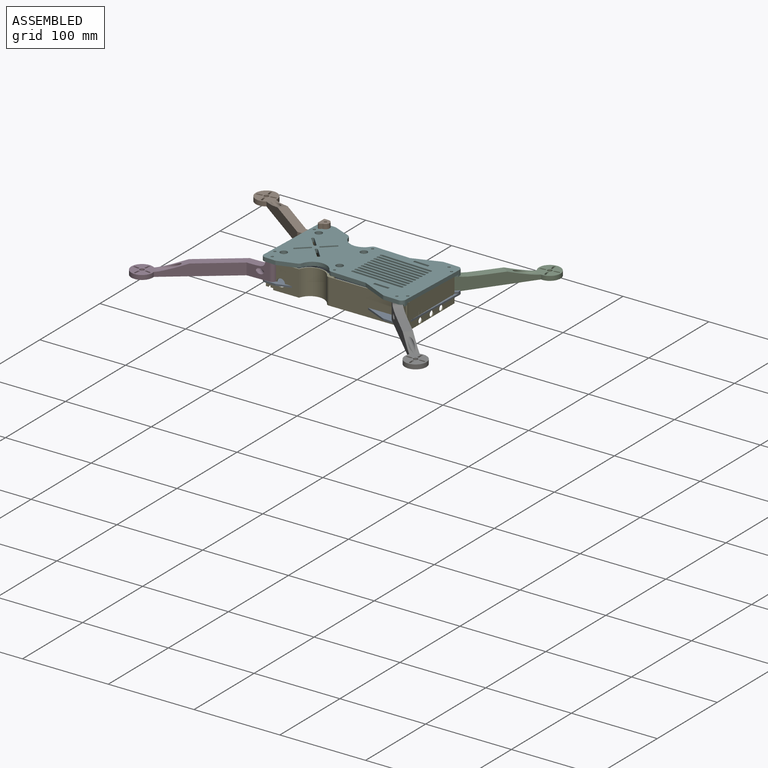
[diagram: assembled view]
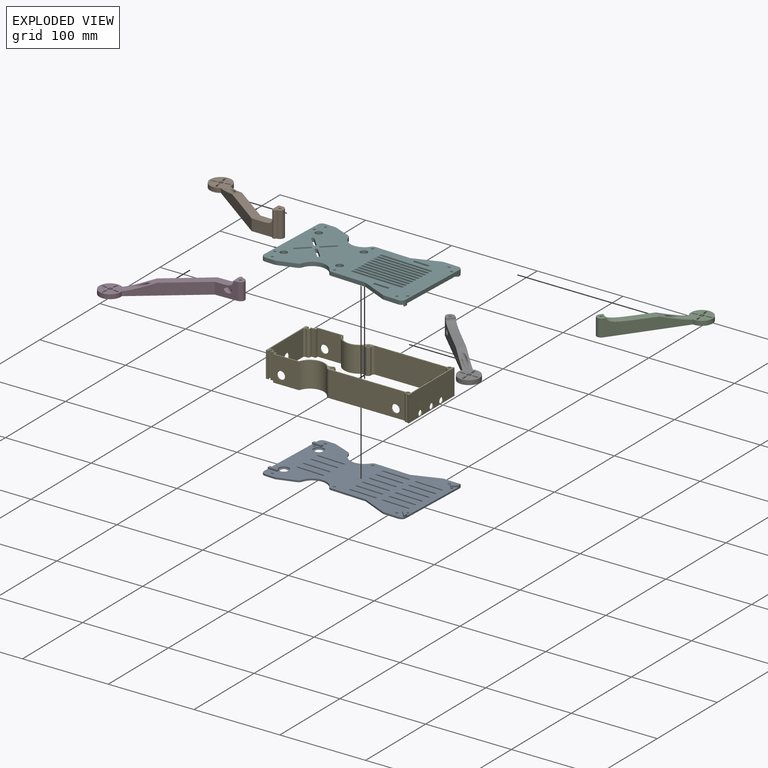
[diagram: exploded view]
GUIDED TOUR — MATED ASSEMBLY (Onshape document 4e5b3a6867eaf1757f32c168, AutoMate assembly 4e5b3a6867eaf1757f32c168_59065921e5721d0c5764df2e_1922234d884349384cbc1616_default)

This assembly has 7 components, labeled P0..P6 below (a component is one placed occurrence of a part; the same part can appear more than once), held together by 5 mates. A mate is a constraint between two components; its type names the relative motion it leaves free:
  REVOLUTE — leaves rotation about the listed axis free (a hinge).
Axis/direction vectors are unit vectors and 'through' points are millimeter coordinates, both in the assembly's world frame.

MATES
  1. REVOLUTE "Revolute 3": P6 <-> P5, axis (0.000, 0.000, 1.000) through (14.46, -40.16, 47.06) mm
  2. REVOLUTE "Revolute 2": P0 <-> P1, axis (0.000, 0.000, 1.000) through (-131.00, 48.73, 27.06) mm
  3. REVOLUTE "Revolute 6": P4 <-> P5, axis (0.000, 0.000, -1.000) through (22.74, -33.84, 47.06) mm
  4. REVOLUTE "Revolute 4": P3 <-> P5, axis (0.000, 0.000, 1.000) through (-134.28, -34.95, 47.06) mm
  5. REVOLUTE "Revolute 5": P2 <-> P0, axis (0.000, 0.000, -1.000) through (17.69, 42.28, 27.06) mm

ASSEMBLY ORDER
  1. P5 — the base component [order heuristic]
  2. P4 — core [order heuristic]
  3. P1 — core [order heuristic]
  4. P0 — core [order heuristic]
  5. P3 [order verified]
  6. P2 [order verified]
  7. P6 [order verified]
(P3 verified with a relaxed clearance tolerance: the source model stores slight part interference there.)
Order-tag legend:
  [order verified] — this step's position reverses a verified removal order: the component was checked to insert without passing through the ones already placed.
  [order heuristic] — the first 4 components form the assembly's core: parts whose collision-free extraction could not be verified, listed in mate-graph order.

Of the 7 components, 3 carry the full construction recipe — the FeatureScript program that regenerates the part's solid from scratch; the rest are supplied as boundary geometry only.
Each toured component is shown spotlighted twice — in the assembled view, then in the exploded view, where a leader line traces a displaced component back to its assembled socket (saturated green if recipe-attached, orange if geometry-only; every other component desaturated gray) — followed by its recipe or geometry summary and the mates that hold it.
NOTE — document 2 of 2 of this assembly tour. The two overview renders and the header above are repeated from document 1; the component sections below continue where the previous document stopped.
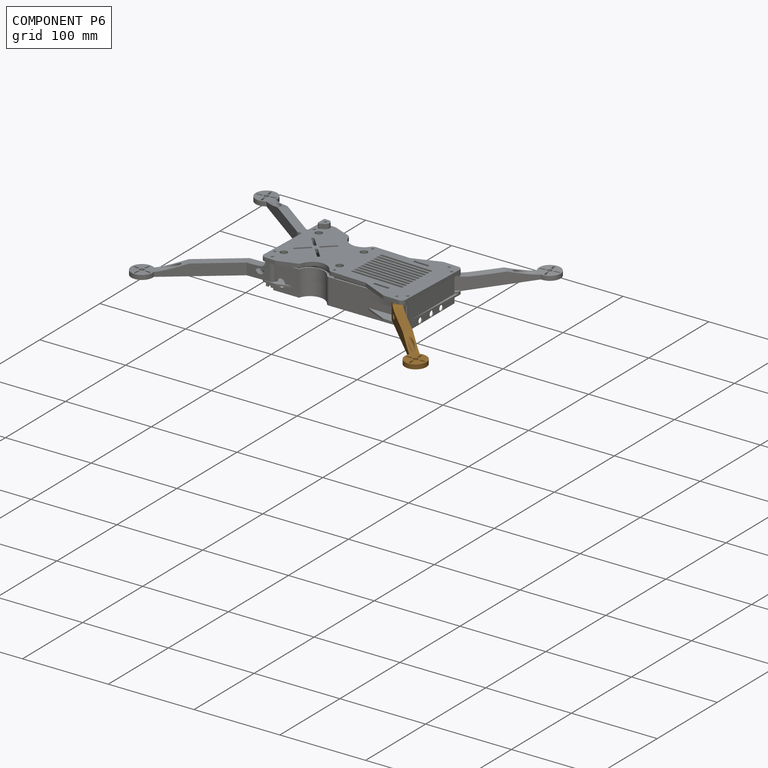
[diagram: component P6 — assembled]
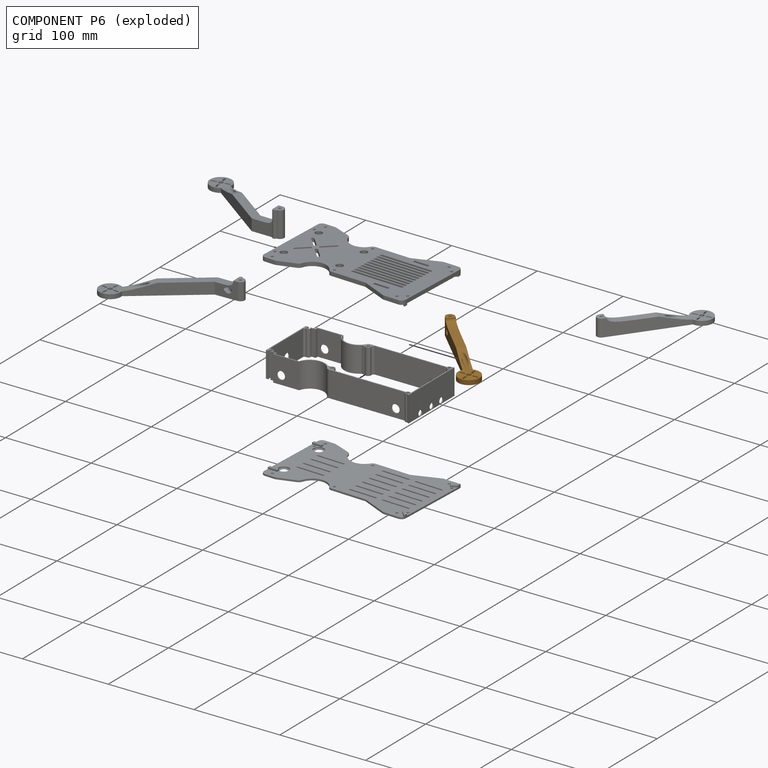
[diagram: component P6 — exploded]
COMPONENT P6 — geometry summary (no construction recipe available for this part):
  bounding box: 119.5 x 25.0 x 20.0 mm
  B-rep topology: 1 solid, 29 faces, 164 edges
  volume: 12053 mm^3 (20% of its bounding box)
Held by: REVOLUTE mate "Revolute 3" to P5.
PROVENANCE & LICENSES
Assembly (occurrences, transforms, mates, per-part STEP geometry): AutoMate dataset, Zenodo record 7776208, CC0.
Construction recipes: CADFS (HuggingFace VladPyatov/CADFS, CC-BY-4.0, layered over the ABC dataset), FeatureScript reconstruction programs keyed by ABC model id.
Join: ABC meta listings map ABC model id -> Onshape documentId; within a shared document, parts are matched by geometric signature (bounding-box dims + volume at 0.1% relative tolerance, exact B-rep face/solid counts).
Verification: 3 of this assembly's 7 components carry a recipe attachment, and every attachment is mesh-verified: the CADFS STEP and the AutoMate member STEP were compared as meshes in their shared local frame (symmetric sampled-point-to-mesh distance); worst across the 3 attachments: below the mesh-comparison resolution (tessellation chordal tolerance ~0.292 mm) on a 195 mm part.
Renders: orthographic iso camera (az 35 / el 25); the floor grid conveys scale (grid pitch printed in each image; no ruler). In the exploded view each component is displaced by its stored offset vector: the offsets alone carry the explosion direction (mate normal/axis signs are not orientation cues and do not encode it), and separation distances are assigned per mate-chain, not proportionally to assembly-order depth.
